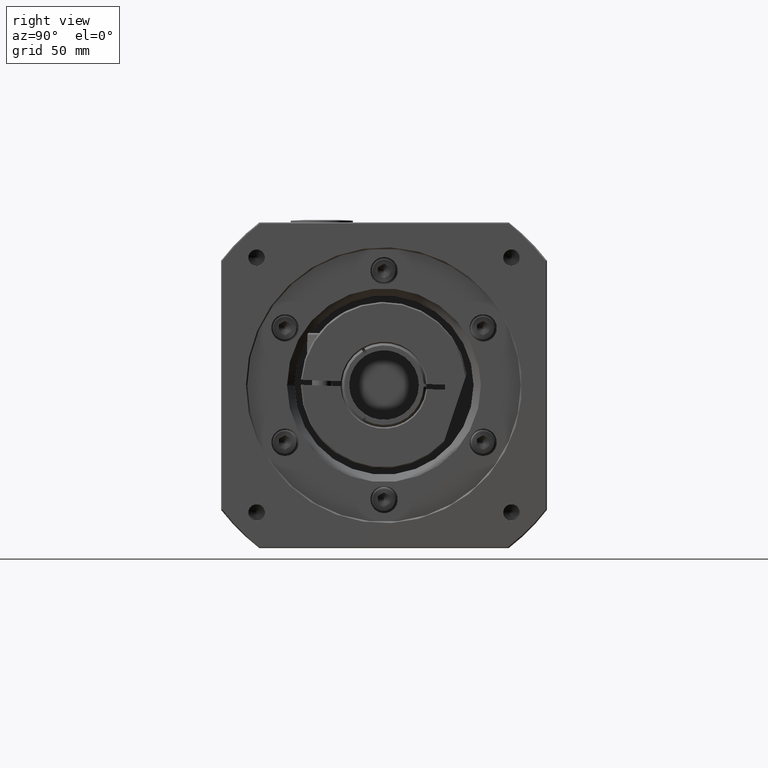
[diagram: clean part render]
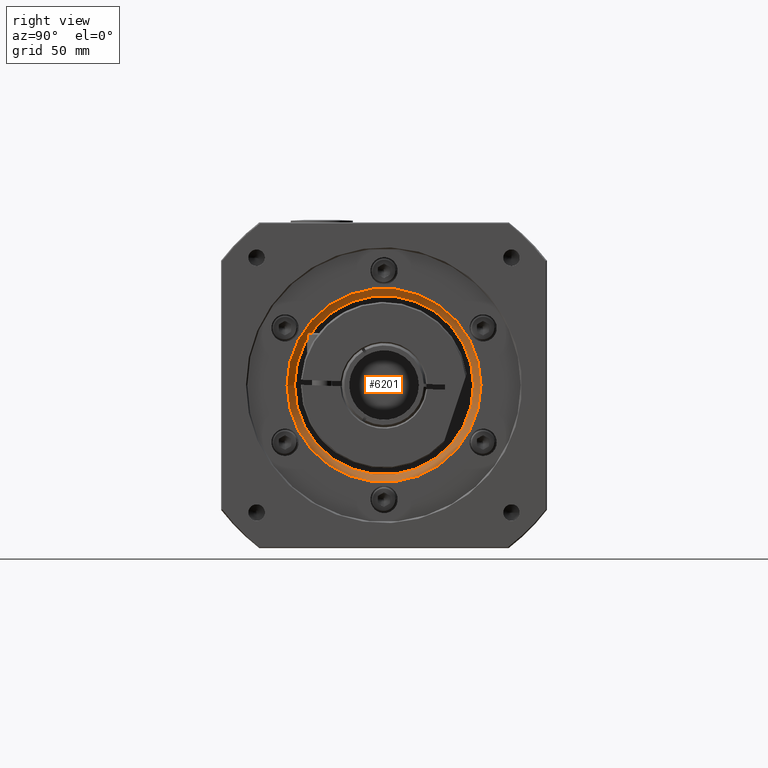
[diagram: same view with one face highlighted and labeled with its STEP entity id]
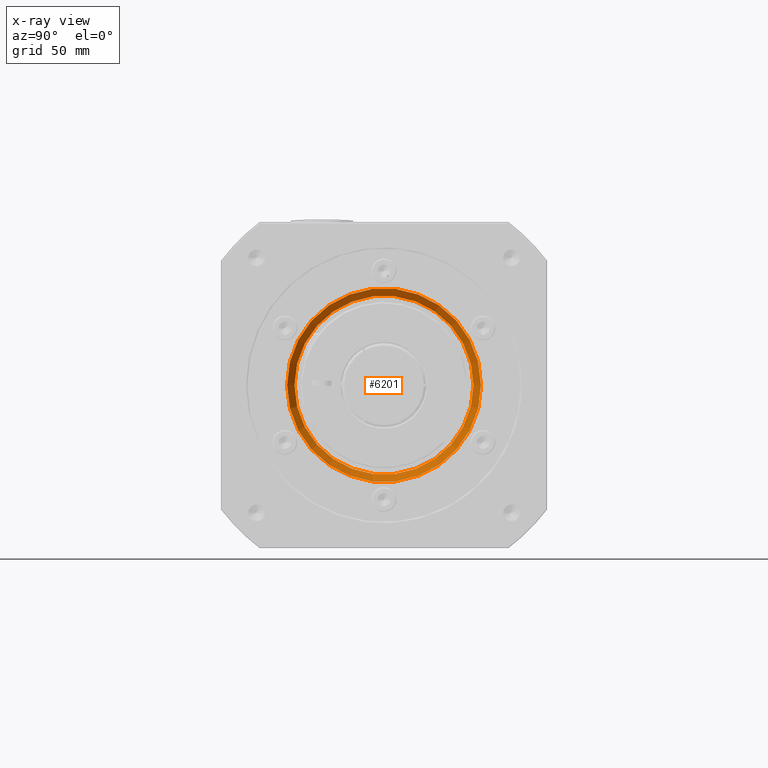
[diagram: x-ray of the same camera — body ghosted, the highlighted face saturated]
A machine part, right view. The second image highlights one B-rep face of the part: STEP entity #6201.
The next image is the same camera in x-ray: the body ghosted, the highlighted face saturated — about 0% of this face is hidden behind the body in this view.
In plain terms, the highlighted conical surface has half-angle 45 deg.
Its self-contained STEP definition (entity closure, byte-faithful):
#786=CONICAL_SURFACE('',#6755,37.5,45.0000000000001);
#1156=FACE_BOUND('',#1898,.T.);
#1399=FACE_OUTER_BOUND('',#1897,.T.);
#1897=EDGE_LOOP('',(#4363));
#1898=EDGE_LOOP('',(#4364));
#2473=CIRCLE('',#6724,36.);
#2486=CIRCLE('',#6754,39.);
#2836=VERTEX_POINT('',#9790);
#2850=VERTEX_POINT('',#9872);
#3436=EDGE_CURVE('',#2836,#2836,#2473,.T.);
#3450=EDGE_CURVE('',#2850,#2850,#2486,.T.);
#4363=ORIENTED_EDGE('',*,*,#3436,.T.);
#4364=ORIENTED_EDGE('',*,*,#3450,.F.);
#6201=ADVANCED_FACE('',(#1399,#1156),#786,.F.);
#6724=AXIS2_PLACEMENT_3D('',#9791,#7695,#7696);
#6754=AXIS2_PLACEMENT_3D('',#9873,#7755,#7756);
#6755=AXIS2_PLACEMENT_3D('',#9874,#7757,#7758);
#7695=DIRECTION('center_axis',(-1.,-4.72771356570088E-16,6.52809391270747E-16));
#7696=DIRECTION('ref_axis',(-6.52809391270748E-16,4.14945855453653E-15,
-1.));
#7755=DIRECTION('center_axis',(-1.,-4.72771356570088E-16,6.52809391270747E-16));
#7756=DIRECTION('ref_axis',(-6.52809391270749E-16,4.14945855453653E-15,
-1.));
#7757=DIRECTION('center_axis',(1.,4.72771356570088E-16,-6.52809391270747E-16));
#7758=DIRECTION('ref_axis',(4.72771356570085E-16,-1.,-4.21725843390295E-15));
#9790=CARTESIAN_POINT('',(38.4486043931108,-159.244525766391,-104.9535040948));
#9791=CARTESIAN_POINT('Origin',(38.4486043931107,-123.244525766391,-104.9535040948));
#9872=CARTESIAN_POINT('',(41.4486043931108,-162.244525766391,-104.9535040948));
#9873=CARTESIAN_POINT('Origin',(41.4486043931107,-123.244525766391,-104.9535040948));
#9874=CARTESIAN_POINT('Origin',(39.9486043931107,-123.244525766391,-104.9535040948));